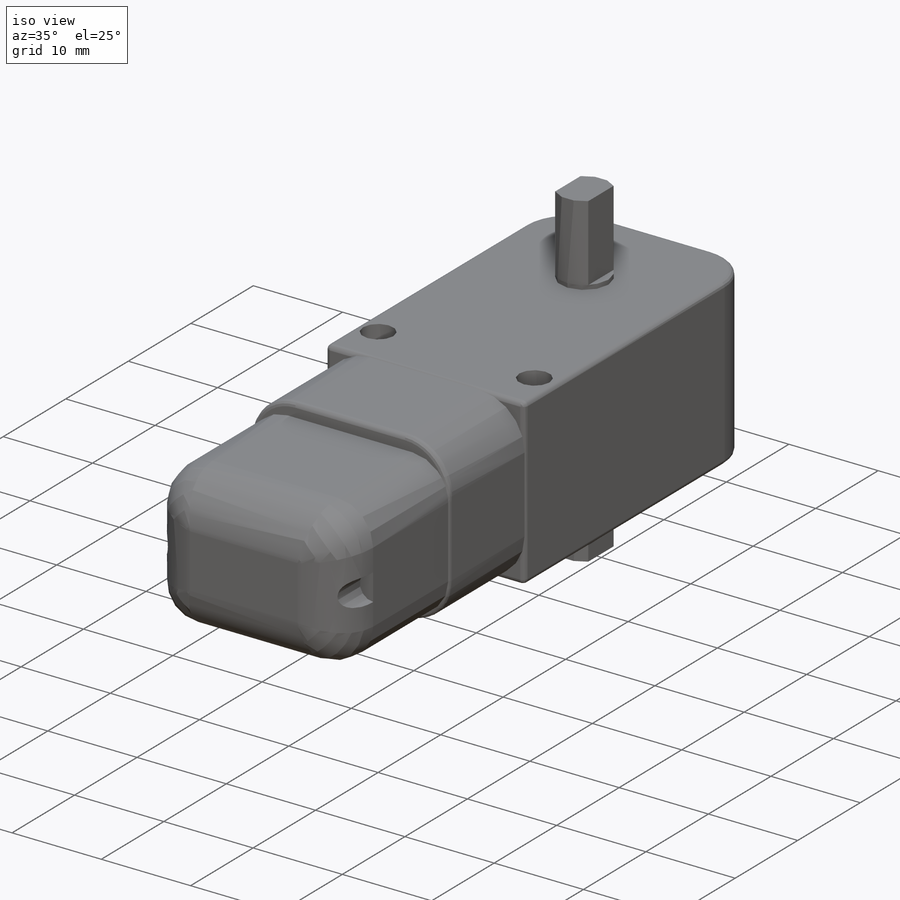
[diagram: iso view]
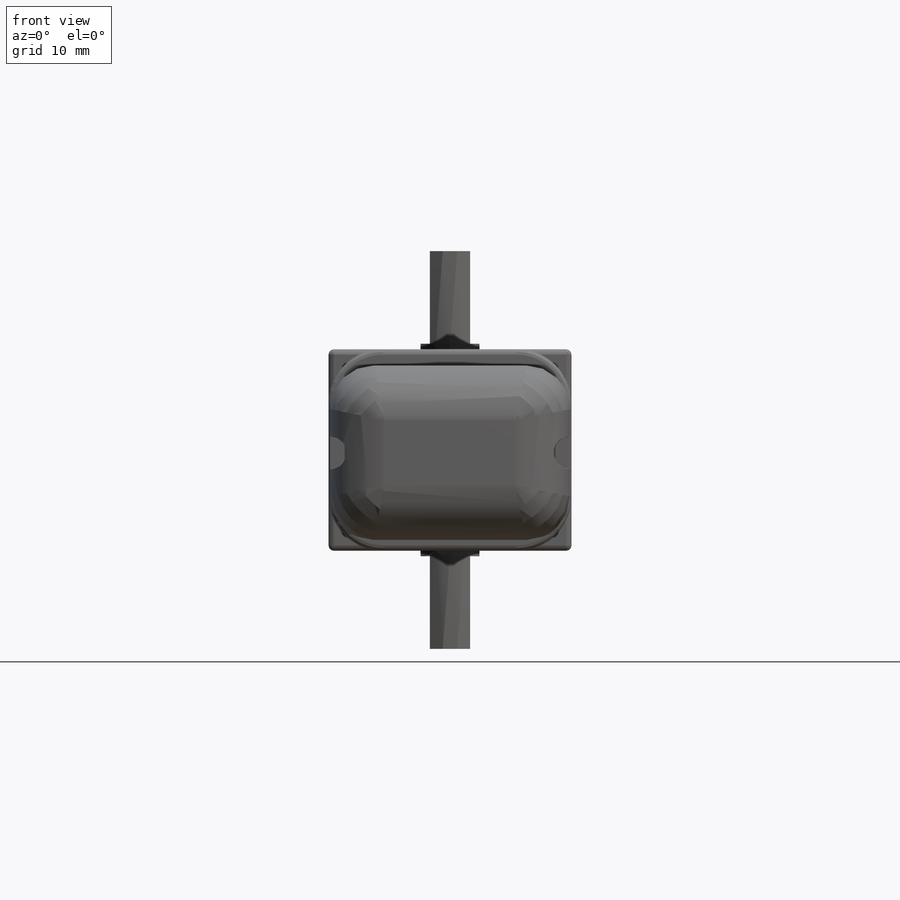
[diagram: front view]
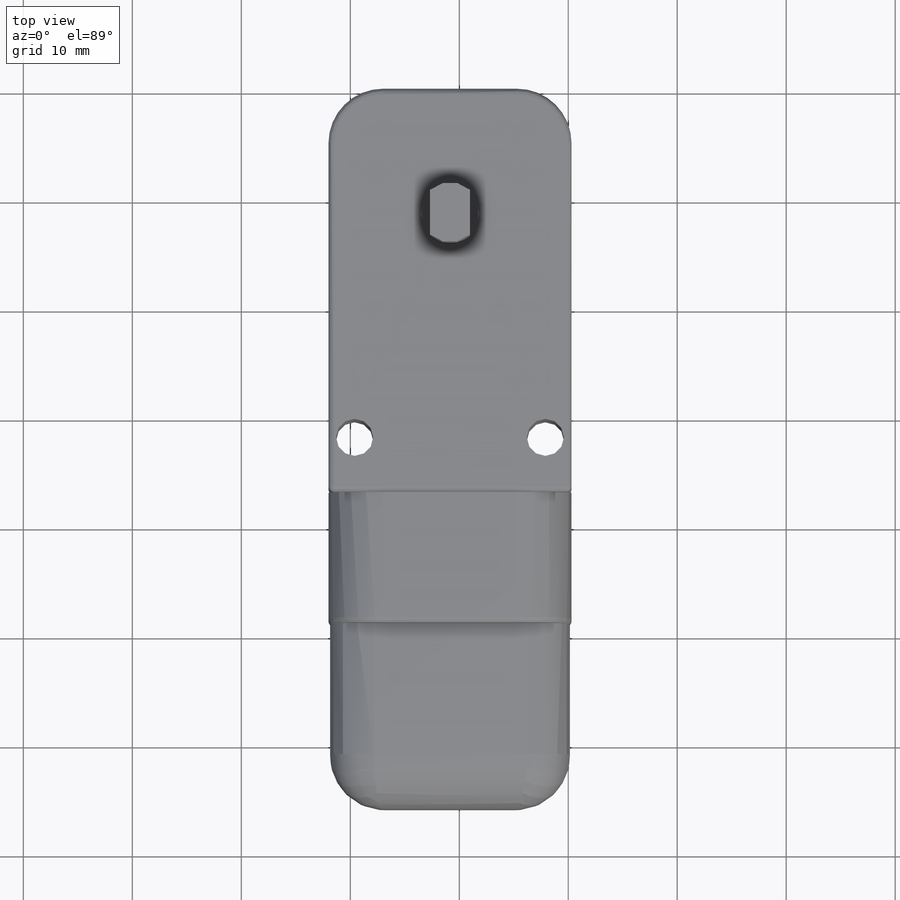
[diagram: top view]
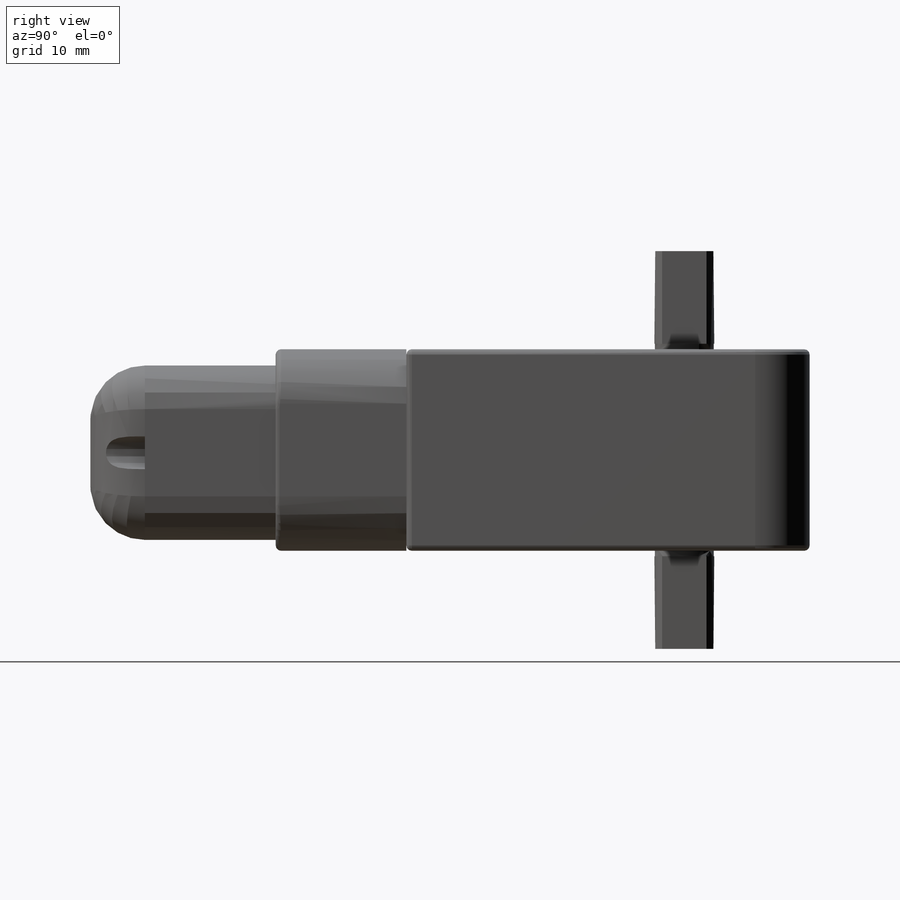
[diagram: right view]
SOLIDWORKS PART (.sldprt)
format: sldprt  version: not decoded by parser v0  size: 481,280 bytes
history: native  units: mm
features: sketch x7, extrude x5, fillet x5, plane x4, cut_extrude x2, material x1, mirror x1 (+10 scaffold rows collapsed)
feature tree (35):
  scaffold x10  (default folders/planes/origin — collapsed)
  material  "材质 <未指定>"
  plane  "前视"
  plane  "上视"
  plane  "右视"
  sketch  "草图1"  dims[c1.D1=50.0mm c1.D2=50.0mm c2.D1=18.5mm c2.D2=22.3mm c2.D3=12.0mm]
  extrude  "凸台-拉伸1"  Depth=37mm
  fillet  "圆角1"  Radius=5mm
  sketch  "草图3"  dims[D1=18.0mm D2=24.0mm]
  extrude  "凸台-拉伸2"  Depth=12mm
  fillet  "圆角2"  Radius=5mm
  sketch  "草图4"  dims[c1.D1=22.0mm c1.D2=16.0mm c1.D3=0.15mm c2.D1=0.0mm c2.D2=1.0mm]
  extrude  "凸台-拉伸3"  Depth=17mm
  fillet  "圆角3"  Radius=5mm
  fillet  "圆角4"  Radius=0.5mm
  fillet  "圆角5"  Radius=0.5mm
  sketch  "草图5"  dims[D1=22.5mm]
  cut_extrude  "切除-拉伸1"  Depth=5mm
  sketch  "草图6"  dims[D1=11.0mm D2=~0.137443mm]
  extrude  "凸台-拉伸4"  Depth=0.5mm
  sketch  "草图7"  dims[c1.D1=1.85mm c1.D2=1.85mm c1.D3=~1.394929mm c2.D2=1.85mm c2.D3=~12.686103mm]
  extrude  "凸台-拉伸5"  Depth=8.5mm
  sketch  "草图8"  dims[c1.D1=17.5mm c1.D2=3.0mm c1.D3=5.0mm c1.D4=5.0mm c2.D3=5.0mm c2.D4=5.0mm]
  cut_extrude  "切除-拉伸2"  Depth=20mm
  plane  "基准面1"  Offset=9.25mm
  mirror  "镜向1"
decode coverage: 19 of 20 modeling features carry decoded parameters
note: ~ marks probable driven/reference dimensions
note: suppression state not decoded; provenance and decode notes live in map.json
